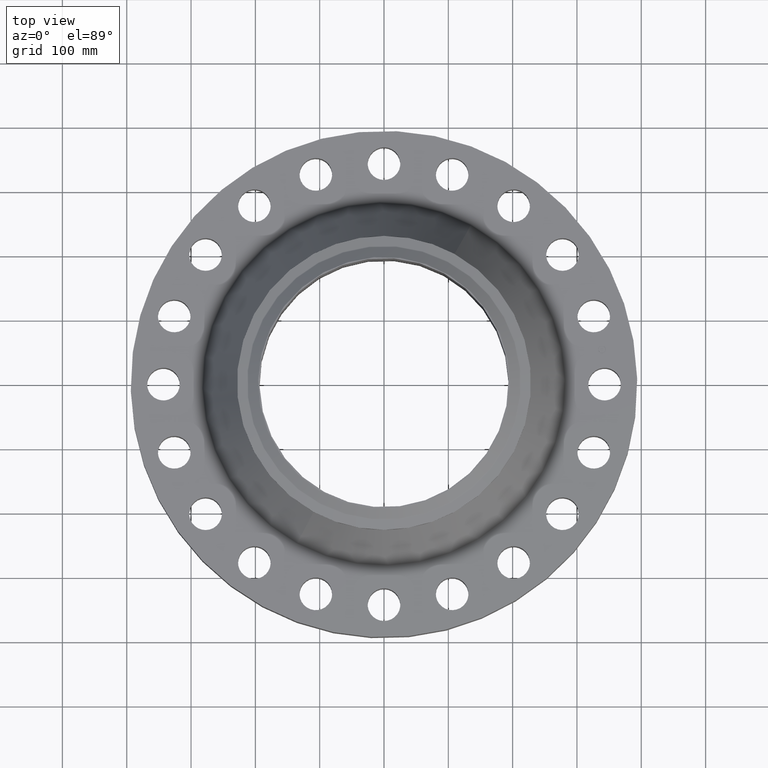
[diagram: clean part render]
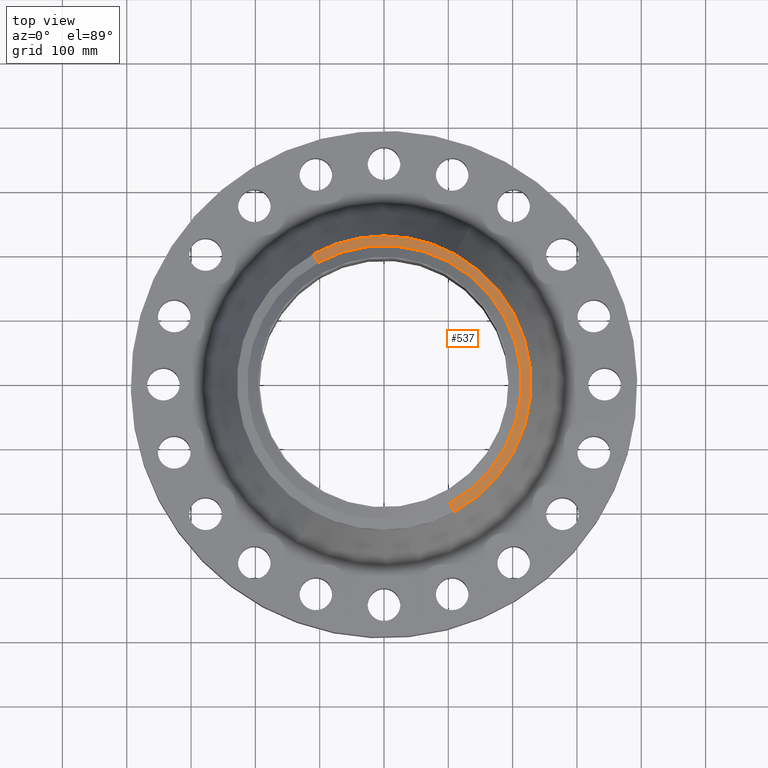
[diagram: same view with one face highlighted and labeled with its STEP entity id]
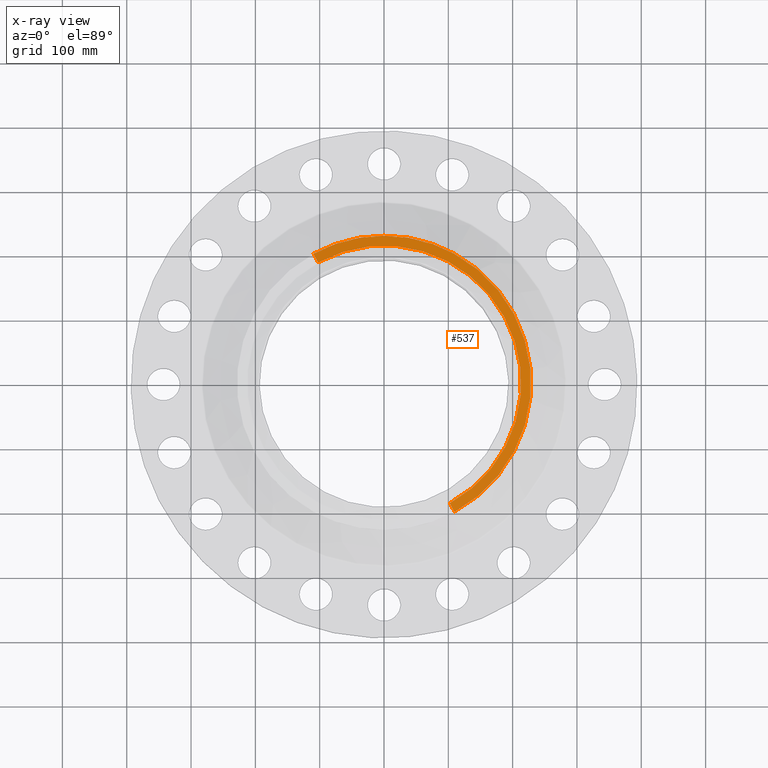
[diagram: x-ray of the same camera — body ghosted, the highlighted face saturated]
A machine part, top view. The second image highlights one B-rep face of the part: STEP entity #537.
The next image is the same camera in x-ray: the body ghosted, the highlighted face saturated — about 0% of this face is hidden behind the body in this view.
In plain terms, the highlighted conical surface has half-angle 80 deg.
Its self-contained STEP definition (entity closure, byte-faithful):
#270=AXIS2_PLACEMENT_3D('Circle Axis2P3D',#268,#269,$) ;
#297=AXIS2_PLACEMENT_3D('Circle Axis2P3D',#295,#296,$) ;
#311=AXIS2_PLACEMENT_3D('Cone Axis2P3D',#308,#309,#310) ;
#480=AXIS2_PLACEMENT_3D('Circle Axis2P3D',#478,#479,$) ;
#265=CARTESIAN_POINT('Vertex',(4.31482984746,7.89824305704,8.37588322982)) ;
#268=CARTESIAN_POINT('Axis2P3D Location',(0.,0.,8.37588322982)) ;
#272=CARTESIAN_POINT('Vertex',(4.31482984746,-7.89824305704,8.37588322982)) ;
#292=CARTESIAN_POINT('Vertex',(-4.31482984746,7.89824305704,8.37588322982)) ;
#295=CARTESIAN_POINT('Axis2P3D Location',(0.,0.,8.37588322982)) ;
#308=CARTESIAN_POINT('Axis2P3D Location',(0.,0.,8.48141601925)) ;
#313=CARTESIAN_POINT('Line Origine',(4.17136027119,-7.63562375925,8.42864962454)) ;
#317=CARTESIAN_POINT('Vertex',(4.02789069492,-7.37300446145,8.48141601925)) ;
#324=CARTESIAN_POINT('Vertex',(-4.02789069492,7.37300446145,8.48141601925)) ;
#327=CARTESIAN_POINT('Line Origine',(-4.17136027119,7.63562375925,8.42864962454)) ;
#478=CARTESIAN_POINT('Axis2P3D Location',(0.,0.,8.48141601925)) ;
#269=DIRECTION('Axis2P3D Direction',(0.,0.,-0.0393700787402)) ;
#296=DIRECTION('Axis2P3D Direction',(0.,0.,-0.0393700787402)) ;
#309=DIRECTION('Axis2P3D Direction',(-0.,-0.,-0.0393700787402)) ;
#310=DIRECTION('Axis2P3D XDirection',(-0.0188750212049,0.0345504945626,0.)) ;
#314=DIRECTION('Vector Direction',(0.0185882672208,-0.0340255949157,-0.00683654242783)) ;
#328=DIRECTION('Vector Direction',(-0.0185882672208,0.0340255949157,-0.00683654242783)) ;
#479=DIRECTION('Axis2P3D Direction',(0.,0.,0.0393700787402)) ;
#315=VECTOR('Line Direction',#314,0.0393700787402) ;
#329=VECTOR('Line Direction',#328,0.0393700787402) ;
#531=ORIENTED_EDGE('',*,*,#331,.F.) ;
#532=ORIENTED_EDGE('',*,*,#482,.F.) ;
#533=ORIENTED_EDGE('',*,*,#319,.T.) ;
#534=ORIENTED_EDGE('',*,*,#274,.T.) ;
#535=ORIENTED_EDGE('',*,*,#299,.F.) ;
#537=ADVANCED_FACE('PartBody',(#536),#312,.T.) ;
#271=CIRCLE('generated circle',#270,9.00000000004) ;
#298=CIRCLE('generated circle',#297,9.00000000004) ;
#481=CIRCLE('generated circle',#480,8.40149380996) ;
#312=CONICAL_SURFACE('Cone',#311,8.40149380996,1.3962634016) ;
#274=EDGE_CURVE('',#273,#266,#271,.F.) ;
#299=EDGE_CURVE('',#293,#266,#298,.T.) ;
#319=EDGE_CURVE('',#318,#273,#316,.T.) ;
#331=EDGE_CURVE('',#325,#293,#330,.T.) ;
#482=EDGE_CURVE('',#318,#325,#481,.T.) ;
#530=EDGE_LOOP('',(#531,#532,#533,#534,#535)) ;
#536=FACE_OUTER_BOUND('',#530,.T.) ;
#316=LINE('Line',#313,#315) ;
#330=LINE('Line',#327,#329) ;
#266=VERTEX_POINT('',#265) ;
#273=VERTEX_POINT('',#272) ;
#293=VERTEX_POINT('',#292) ;
#318=VERTEX_POINT('',#317) ;
#325=VERTEX_POINT('',#324) ;